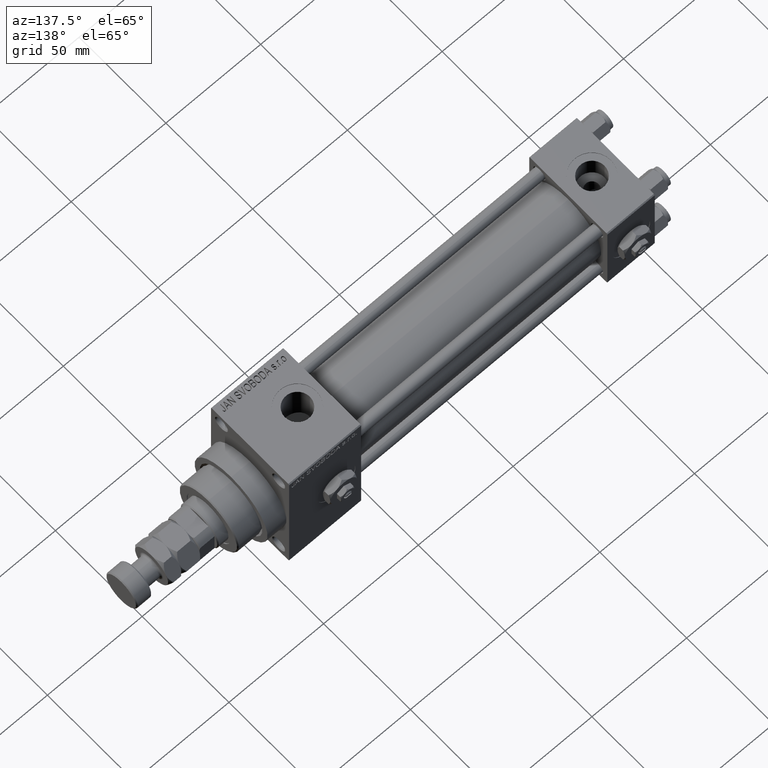
[diagram: clean part render]
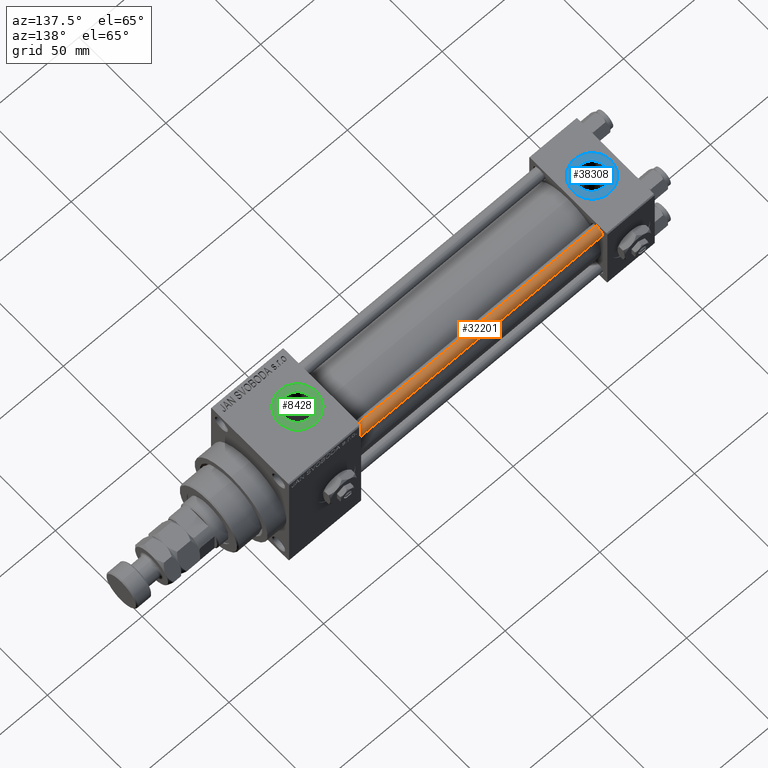
[diagram: same view with three faces highlighted in distinct colors, each labeled with its STEP entity id]
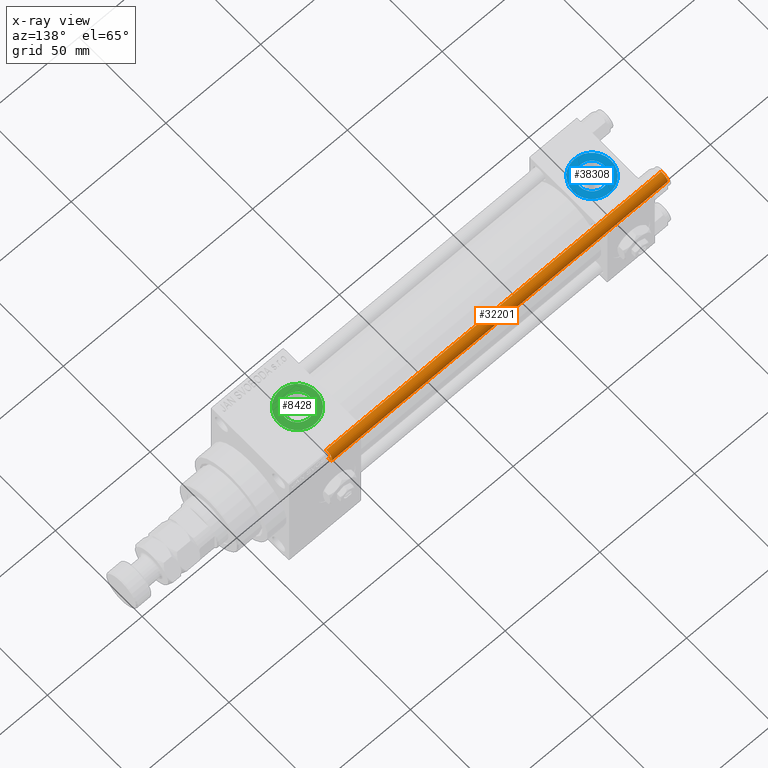
[diagram: x-ray of the same camera — body ghosted, the three highlighted faces saturated]
A machine part, auxiliary view with three faces highlighted in distinct colors.
The next image is the same camera in x-ray (body ghosted, the three faces saturated) — at least one of them is partly hidden behind the body in this view.
Their STEP definitions:

[orange] entity #32201 — the highlighted cylindrical surface (edge-blend (fillet) strip) has radius 3 mm, axis along (-1, -0, 0).
#3737 = DIRECTION ( 'NONE',  ( 0.000000000000000000, 0.000000000000000000, -1.000000000000000000 ) ) ;
#3930 = ORIENTED_EDGE ( 'NONE', *, *, #24527, .T. ) ;
#7049 = AXIS2_PLACEMENT_3D ( 'NONE', #40226, #43583, #8388 ) ;
#8138 = FACE_OUTER_BOUND ( 'NONE', #28609, .T. ) ;
#8388 = DIRECTION ( 'NONE',  ( -1.000000000000000000, 0.000000000000000000, 0.000000000000000000 ) ) ;
#8760 = ORIENTED_EDGE ( 'NONE', *, *, #43218, .T. ) ;
#9048 = CARTESIAN_POINT ( 'NONE',  ( 0.000000000000000000, 0.000000000000000000, 0.5000000000000281997 ) ) ;
#9739 = CIRCLE ( 'NONE', #21255, 3.000000000000000444 ) ;
#9806 = VECTOR ( 'NONE', #44496, 1000.000000000000000 ) ;
#9857 = CARTESIAN_POINT ( 'NONE',  ( 3.000000000000000444, 3.673940397442060361E-16, 177.5000000000000000 ) ) ;
#12894 = DIRECTION ( 'NONE',  ( 1.000000000000000000, 0.000000000000000000, 0.000000000000000000 ) ) ;
#13099 = ORIENTED_EDGE ( 'NONE', *, *, #42756, .F. ) ;
#18892 = DIRECTION ( 'NONE',  ( 1.000000000000000000, 0.000000000000000000, 0.000000000000000000 ) ) ;
#20100 = LINE ( 'NONE', #40129, #9806 ) ;
#20445 = VERTEX_POINT ( 'NONE', #9857 ) ;
#20586 = CARTESIAN_POINT ( 'NONE',  ( -3.000000000000000444, 0.000000000000000000, 178.0000000000000000 ) ) ;
#21255 = AXIS2_PLACEMENT_3D ( 'NONE', #31488, #3737, #18892 ) ;
#21575 = AXIS2_PLACEMENT_3D ( 'NONE', #9048, #28831, #12894 ) ;
#22437 = CARTESIAN_POINT ( 'NONE',  ( 3.000000000000000444, 3.673940397442060361E-16, 0.5000000000000281997 ) ) ;
#23600 = VERTEX_POINT ( 'NONE', #22437 ) ;
#23909 = ORIENTED_EDGE ( 'NONE', *, *, #44729, .T. ) ;
#24527 = EDGE_CURVE ( 'NONE', #23600, #44875, #26500, .T. ) ;
#24993 = CARTESIAN_POINT ( 'NONE',  ( -3.000000000000000444, 0.000000000000000000, 177.5000000000000000 ) ) ;
#26500 = CIRCLE ( 'NONE', #21575, 3.000000000000000444 ) ;
#28609 = EDGE_LOOP ( 'NONE', ( #8760, #23909, #3930, #13099 ) ) ;
#28831 = DIRECTION ( 'NONE',  ( -0.000000000000000000, -0.000000000000000000, 1.000000000000000000 ) ) ;
#29633 = VERTEX_POINT ( 'NONE', #24993 ) ;
#31488 = CARTESIAN_POINT ( 'NONE',  ( 0.000000000000000000, 0.000000000000000000, 177.5000000000000000 ) ) ;
#32201 = ADVANCED_FACE ( 'NONE', ( #8138 ), #35879, .T. ) ;
#33569 = VECTOR ( 'NONE', #43970, 1000.000000000000000 ) ;
#35879 = CYLINDRICAL_SURFACE ( 'NONE', #7049, 3.000000000000000444 ) ;
#40129 = CARTESIAN_POINT ( 'NONE',  ( 3.000000000000000444, 3.673940397442060361E-16, 178.0000000000000000 ) ) ;
#40226 = CARTESIAN_POINT ( 'NONE',  ( 0.000000000000000000, 0.000000000000000000, 178.0000000000000000 ) ) ;
#41654 = CARTESIAN_POINT ( 'NONE',  ( -3.000000000000000444, 0.000000000000000000, 0.5000000000000281997 ) ) ;
#42756 = EDGE_CURVE ( 'NONE', #29633, #44875, #47824, .T. ) ;
#43218 = EDGE_CURVE ( 'NONE', #29633, #20445, #9739, .T. ) ;
#43583 = DIRECTION ( 'NONE',  ( -0.000000000000000000, -0.000000000000000000, -1.000000000000000000 ) ) ;
#43970 = DIRECTION ( 'NONE',  ( -0.000000000000000000, -0.000000000000000000, -1.000000000000000000 ) ) ;
#44496 = DIRECTION ( 'NONE',  ( -0.000000000000000000, -0.000000000000000000, -1.000000000000000000 ) ) ;
#44729 = EDGE_CURVE ( 'NONE', #20445, #23600, #20100, .T. ) ;
#44875 = VERTEX_POINT ( 'NONE', #41654 ) ;
#47824 = LINE ( 'NONE', #20586, #33569 ) ;

[blue] entity #38308 — the highlighted planar face has unit normal (0, 0, 1).
#133 = EDGE_LOOP ( 'NONE', ( #40906, #45210 ) ) ;
#2648 = FACE_OUTER_BOUND ( 'NONE', #133, .T. ) ;
#3602 = CARTESIAN_POINT ( 'NONE',  ( 22.50000000000000000, -1.734723475976807094E-15, 22.30000000000000071 ) ) ;
#4471 = EDGE_CURVE ( 'NONE', #11895, #6287, #15250, .T. ) ;
#4572 = AXIS2_PLACEMENT_3D ( 'NONE', #44423, #12816, #44676 ) ;
#5968 = DIRECTION ( 'NONE',  ( 1.000000000000000000, 0.000000000000000000, 0.000000000000000000 ) ) ;
#6287 = VERTEX_POINT ( 'NONE', #3602 ) ;
#6607 = VERTEX_POINT ( 'NONE', #35149 ) ;
#9715 = ORIENTED_EDGE ( 'NONE', *, *, #21600, .F. ) ;
#10224 = AXIS2_PLACEMENT_3D ( 'NONE', #40470, #20947, #36630 ) ;
#11895 = VERTEX_POINT ( 'NONE', #18270 ) ;
#12364 = EDGE_LOOP ( 'NONE', ( #28230, #9715 ) ) ;
#12816 = DIRECTION ( 'NONE',  ( 0.000000000000000000, 0.000000000000000000, 1.000000000000000000 ) ) ;
#14714 = DIRECTION ( 'NONE',  ( 0.000000000000000000, 0.000000000000000000, 1.000000000000000000 ) ) ;
#15215 = PLANE ( 'NONE',  #21039 ) ;
#15250 = CIRCLE ( 'NONE', #4572, 9.999999999999998224 ) ;
#18270 = CARTESIAN_POINT ( 'NONE',  ( 2.500000000000003997, -5.100766768294543310E-16, 22.30000000000000071 ) ) ;
#18969 = AXIS2_PLACEMENT_3D ( 'NONE', #32966, #28836, #5968 ) ;
#20376 = CARTESIAN_POINT ( 'NONE',  ( 12.50000000000000000, -1.734723475976807094E-15, 22.30000000000000071 ) ) ;
#20947 = DIRECTION ( 'NONE',  ( 0.000000000000000000, 0.000000000000000000, 1.000000000000000000 ) ) ;
#21039 = AXIS2_PLACEMENT_3D ( 'NONE', #30140, #14714, #38341 ) ;
#21600 = EDGE_CURVE ( 'NONE', #6607, #38169, #35424, .T. ) ;
#22164 = FACE_BOUND ( 'NONE', #12364, .T. ) ;
#25889 = EDGE_CURVE ( 'NONE', #38169, #6607, #26065, .T. ) ;
#26065 = CIRCLE ( 'NONE', #36749, 6.579999999999999183 ) ;
#28230 = ORIENTED_EDGE ( 'NONE', *, *, #25889, .F. ) ;
#28836 = DIRECTION ( 'NONE',  ( 0.000000000000000000, 0.000000000000000000, 1.000000000000000000 ) ) ;
#30140 = CARTESIAN_POINT ( 'NONE',  ( 12.50000000000000000, -1.734723475976807094E-15, 22.30000000000000071 ) ) ;
#30371 = EDGE_CURVE ( 'NONE', #6287, #11895, #33245, .T. ) ;
#32212 = DIRECTION ( 'NONE',  ( 0.000000000000000000, 0.000000000000000000, 1.000000000000000000 ) ) ;
#32966 = CARTESIAN_POINT ( 'NONE',  ( 12.50000000000000000, -1.734723475976807094E-15, 22.30000000000000071 ) ) ;
#33245 = CIRCLE ( 'NONE', #10224, 9.999999999999998224 ) ;
#35149 = CARTESIAN_POINT ( 'NONE',  ( 5.920000000000002593, -9.289058821378490386E-16, 22.30000000000000071 ) ) ;
#35424 = CIRCLE ( 'NONE', #18969, 6.579999999999999183 ) ;
#36630 = DIRECTION ( 'NONE',  ( 1.000000000000000000, 0.000000000000000000, 0.000000000000000000 ) ) ;
#36749 = AXIS2_PLACEMENT_3D ( 'NONE', #20376, #32212, #39144 ) ;
#38169 = VERTEX_POINT ( 'NONE', #47623 ) ;
#38308 = ADVANCED_FACE ( 'NONE', ( #22164, #2648 ), #15215, .T. ) ;
#38341 = DIRECTION ( 'NONE',  ( 1.000000000000000000, 0.000000000000000000, -0.000000000000000000 ) ) ;
#39144 = DIRECTION ( 'NONE',  ( 1.000000000000000000, 0.000000000000000000, 0.000000000000000000 ) ) ;
#40470 = CARTESIAN_POINT ( 'NONE',  ( 12.50000000000000000, -1.734723475976807094E-15, 22.30000000000000071 ) ) ;
#40906 = ORIENTED_EDGE ( 'NONE', *, *, #30371, .T. ) ;
#44423 = CARTESIAN_POINT ( 'NONE',  ( 12.50000000000000000, -1.734723475976807094E-15, 22.30000000000000071 ) ) ;
#44676 = DIRECTION ( 'NONE',  ( 1.000000000000000000, 0.000000000000000000, 0.000000000000000000 ) ) ;
#45210 = ORIENTED_EDGE ( 'NONE', *, *, #4471, .T. ) ;
#47623 = CARTESIAN_POINT ( 'NONE',  ( 19.07999999999999829, -1.734723475976807094E-15, 22.30000000000000071 ) ) ;

[green] entity #8428 — the highlighted planar face has unit normal (0, 0, 1).
#451 = DIRECTION ( 'NONE',  ( 0.000000000000000000, 0.000000000000000000, 1.000000000000000000 ) ) ;
#1504 = FACE_BOUND ( 'NONE', #43502, .T. ) ;
#3523 = DIRECTION ( 'NONE',  ( 1.000000000000000000, 0.000000000000000000, 0.000000000000000000 ) ) ;
#4899 = AXIS2_PLACEMENT_3D ( 'NONE', #46242, #11046, #7202 ) ;
#5480 = CARTESIAN_POINT ( 'NONE',  ( 161.4200000000000443, 0.000000000000000000, 34.80000000000000426 ) ) ;
#7202 = DIRECTION ( 'NONE',  ( 1.000000000000000000, 0.000000000000000000, 0.000000000000000000 ) ) ;
#7987 = AXIS2_PLACEMENT_3D ( 'NONE', #44660, #48767, #37469 ) ;
#8428 = ADVANCED_FACE ( 'NONE', ( #1504, #13578 ), #41822, .T. ) ;
#11046 = DIRECTION ( 'NONE',  ( -0.000000000000000000, -0.000000000000000000, -1.000000000000000000 ) ) ;
#11653 = EDGE_LOOP ( 'NONE', ( #20627, #32070 ) ) ;
#12845 = CARTESIAN_POINT ( 'NONE',  ( 178.0000000000000568, 0.000000000000000000, 34.80000000000000426 ) ) ;
#13014 = VERTEX_POINT ( 'NONE', #12845 ) ;
#13578 = FACE_OUTER_BOUND ( 'NONE', #11653, .T. ) ;
#16371 = CIRCLE ( 'NONE', #4899, 6.580000000000002736 ) ;
#16634 = CIRCLE ( 'NONE', #23211, 10.00000000000000888 ) ;
#17183 = CIRCLE ( 'NONE', #21294, 6.580000000000002736 ) ;
#17522 = EDGE_CURVE ( 'NONE', #23922, #46934, #17183, .T. ) ;
#17811 = EDGE_CURVE ( 'NONE', #46934, #23922, #16371, .T. ) ;
#19294 = CARTESIAN_POINT ( 'NONE',  ( 158.0000000000000284, 1.224646799147354440E-15, 34.80000000000000426 ) ) ;
#20627 = ORIENTED_EDGE ( 'NONE', *, *, #26834, .T. ) ;
#21294 = AXIS2_PLACEMENT_3D ( 'NONE', #31464, #30708, #50229 ) ;
#23211 = AXIS2_PLACEMENT_3D ( 'NONE', #45407, #23294, #3523 ) ;
#23294 = DIRECTION ( 'NONE',  ( 0.000000000000000000, 0.000000000000000000, 1.000000000000000000 ) ) ;
#23922 = VERTEX_POINT ( 'NONE', #35479 ) ;
#25292 = VERTEX_POINT ( 'NONE', #19294 ) ;
#26834 = EDGE_CURVE ( 'NONE', #13014, #25292, #16634, .T. ) ;
#30708 = DIRECTION ( 'NONE',  ( -0.000000000000000000, -0.000000000000000000, -1.000000000000000000 ) ) ;
#31464 = CARTESIAN_POINT ( 'NONE',  ( 168.0000000000000284, 0.000000000000000000, 34.80000000000000426 ) ) ;
#32070 = ORIENTED_EDGE ( 'NONE', *, *, #44502, .T. ) ;
#32851 = ORIENTED_EDGE ( 'NONE', *, *, #17811, .T. ) ;
#35248 = CIRCLE ( 'NONE', #36890, 10.00000000000000888 ) ;
#35479 = CARTESIAN_POINT ( 'NONE',  ( 174.5800000000000409, 8.058175938389620001E-16, 34.80000000000000426 ) ) ;
#35656 = CARTESIAN_POINT ( 'NONE',  ( 168.0000000000000284, 0.000000000000000000, 34.80000000000000426 ) ) ;
#36890 = AXIS2_PLACEMENT_3D ( 'NONE', #35656, #451, #46965 ) ;
#37469 = DIRECTION ( 'NONE',  ( 1.000000000000000000, 0.000000000000000000, -0.000000000000000000 ) ) ;
#39827 = ORIENTED_EDGE ( 'NONE', *, *, #17522, .T. ) ;
#41822 = PLANE ( 'NONE',  #7987 ) ;
#43502 = EDGE_LOOP ( 'NONE', ( #32851, #39827 ) ) ;
#44502 = EDGE_CURVE ( 'NONE', #25292, #13014, #35248, .T. ) ;
#44660 = CARTESIAN_POINT ( 'NONE',  ( 168.0000000000000284, 0.000000000000000000, 34.80000000000000426 ) ) ;
#45407 = CARTESIAN_POINT ( 'NONE',  ( 168.0000000000000284, 0.000000000000000000, 34.80000000000000426 ) ) ;
#46242 = CARTESIAN_POINT ( 'NONE',  ( 168.0000000000000284, 0.000000000000000000, 34.80000000000000426 ) ) ;
#46934 = VERTEX_POINT ( 'NONE', #5480 ) ;
#46965 = DIRECTION ( 'NONE',  ( 1.000000000000000000, 0.000000000000000000, 0.000000000000000000 ) ) ;
#48767 = DIRECTION ( 'NONE',  ( 0.000000000000000000, 0.000000000000000000, 1.000000000000000000 ) ) ;
#50229 = DIRECTION ( 'NONE',  ( 1.000000000000000000, 0.000000000000000000, 0.000000000000000000 ) ) ;